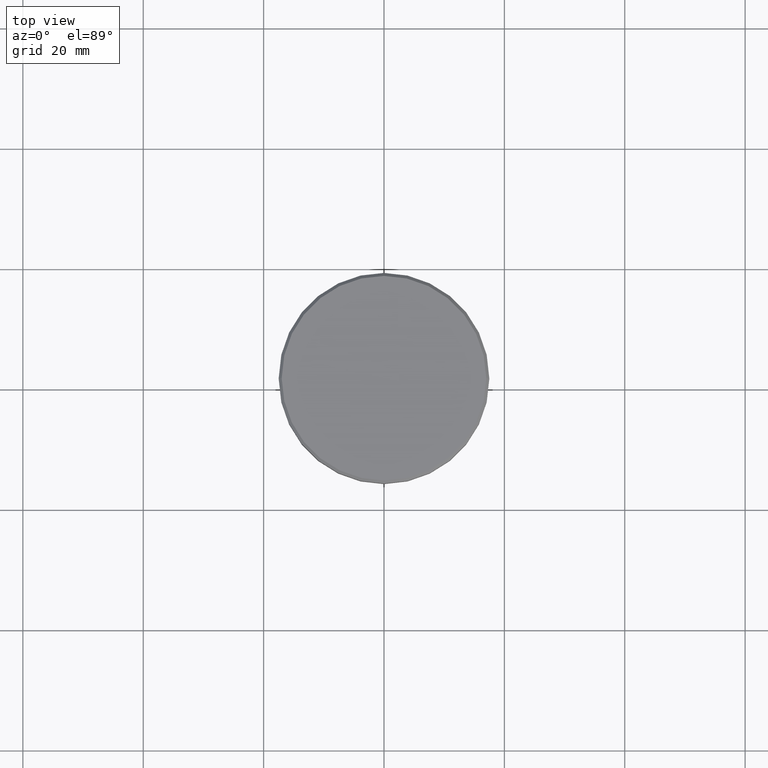
[diagram: clean part render]
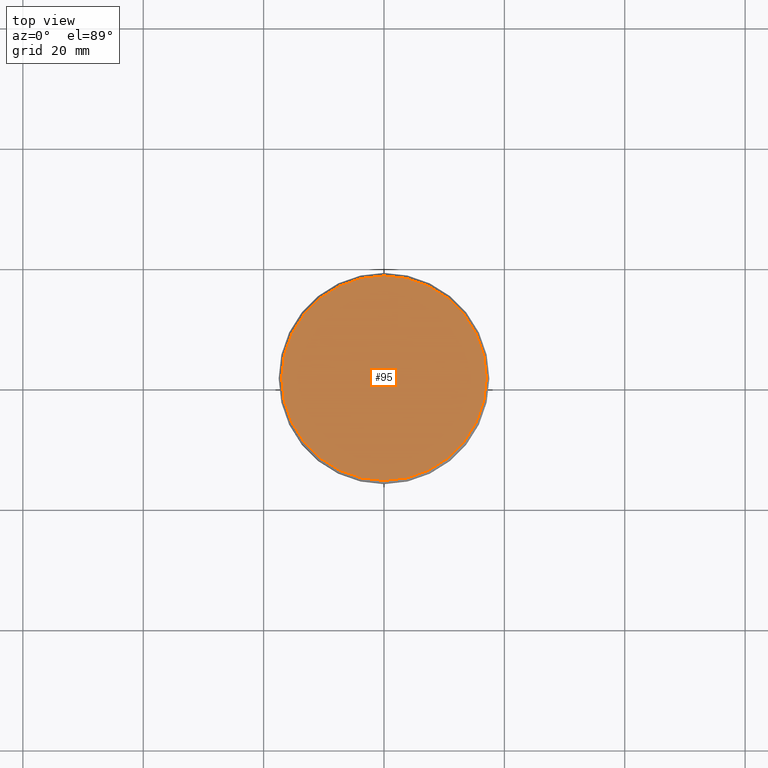
[diagram: same view with one face highlighted and labeled with its STEP entity id]
A machine part, top view. The second image highlights one B-rep face of the part: STEP entity #95.
In plain terms, the highlighted planar face has unit normal (0, -0, 1).
Its self-contained STEP definition (entity closure, byte-faithful):
#95 = ADVANCED_FACE ( 'NONE', ( #861 ), #410, .T. ) ;
#187 = AXIS2_PLACEMENT_3D ( 'NONE', #606, #511, #338 ) ;
#220 = CARTESIAN_POINT ( 'NONE',  ( 16.99999999999997513, 2.112515728529182883E-15, 0.000000000000000000 ) ) ;
#229 = AXIS2_PLACEMENT_3D ( 'NONE', #526, #891, #614 ) ;
#232 = EDGE_LOOP ( 'NONE', ( #1167, #405 ) ) ;
#331 = CARTESIAN_POINT ( 'NONE',  ( 0.000000000000000000, 0.000000000000000000, 0.000000000000000000 ) ) ;
#338 = DIRECTION ( 'NONE',  ( 1.000000000000000000, 0.000000000000000000, 0.000000000000000000 ) ) ;
#349 = VERTEX_POINT ( 'NONE', #908 ) ;
#361 = CIRCLE ( 'NONE', #1000, 16.99999999999997513 ) ;
#405 = ORIENTED_EDGE ( 'NONE', *, *, #650, .T. ) ;
#410 = PLANE ( 'NONE',  #187 ) ;
#480 = VERTEX_POINT ( 'NONE', #220 ) ;
#511 = DIRECTION ( 'NONE',  ( 0.000000000000000000, -0.000000000000000000, 1.000000000000000000 ) ) ;
#517 = DIRECTION ( 'NONE',  ( 1.000000000000000000, 0.000000000000000000, 0.000000000000000000 ) ) ;
#526 = CARTESIAN_POINT ( 'NONE',  ( 0.000000000000000000, 0.000000000000000000, 0.000000000000000000 ) ) ;
#597 = DIRECTION ( 'NONE',  ( -0.000000000000000000, -0.000000000000000000, 1.000000000000000000 ) ) ;
#606 = CARTESIAN_POINT ( 'NONE',  ( 0.000000000000000000, 0.000000000000000000, 0.000000000000000000 ) ) ;
#614 = DIRECTION ( 'NONE',  ( 1.000000000000000000, 0.000000000000000000, 0.000000000000000000 ) ) ;
#650 = EDGE_CURVE ( 'NONE', #480, #349, #361, .T. ) ;
#741 = CIRCLE ( 'NONE', #229, 16.99999999999997513 ) ;
#819 = EDGE_CURVE ( 'NONE', #349, #480, #741, .T. ) ;
#861 = FACE_OUTER_BOUND ( 'NONE', #232, .T. ) ;
#891 = DIRECTION ( 'NONE',  ( -0.000000000000000000, -0.000000000000000000, 1.000000000000000000 ) ) ;
#908 = CARTESIAN_POINT ( 'NONE',  ( -16.99999999999997513, 0.000000000000000000, 0.000000000000000000 ) ) ;
#1000 = AXIS2_PLACEMENT_3D ( 'NONE', #331, #597, #517 ) ;
#1167 = ORIENTED_EDGE ( 'NONE', *, *, #819, .T. ) ;